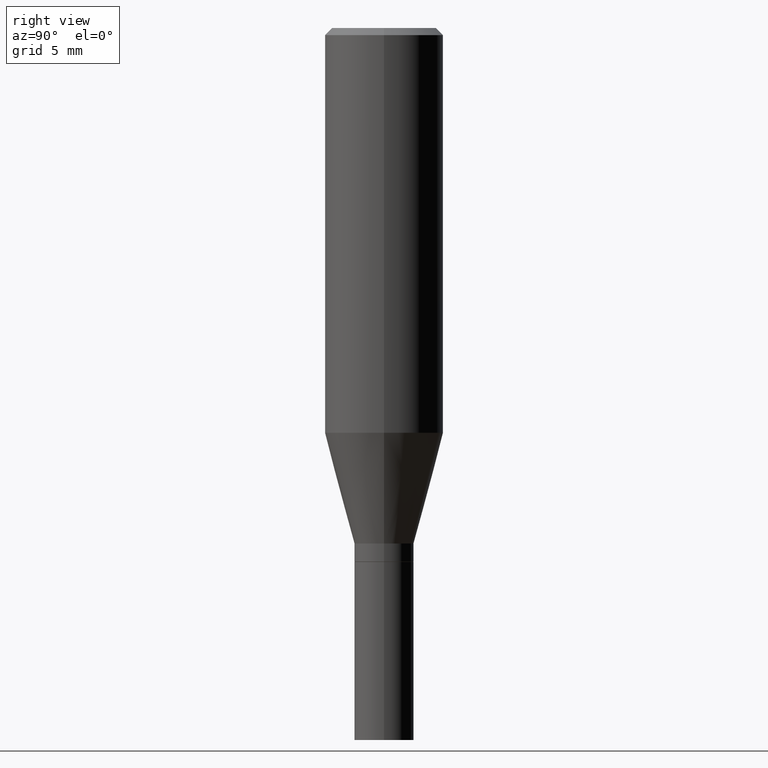
[diagram: clean part render]
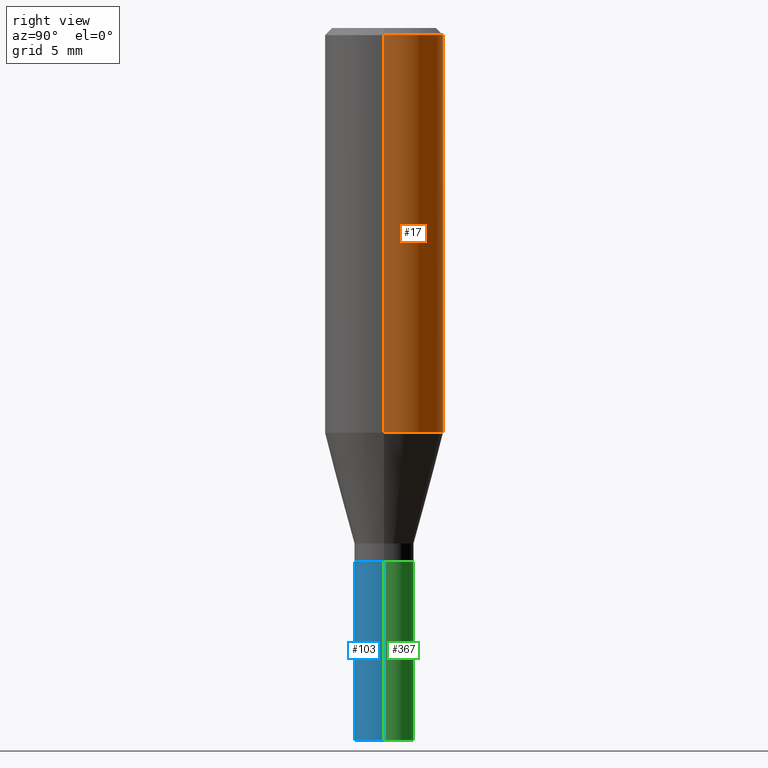
[diagram: same view with three faces highlighted in distinct colors, each labeled with its STEP entity id]
A machine part, right view with three faces highlighted in distinct colors.
Their STEP definitions:

[orange] entity #17 — the highlighted cylindrical surface (partial cylindrical patch) has radius 3.175 mm, axis along (-0, 0, 1).
#17 = ADVANCED_FACE ( 'NONE', ( #465 ), #358, .T. ) ;
#24 = DIRECTION ( 'NONE',  ( -2.445468806185136597E-29, 3.491481338843145583E-15, 1.000000000000000000 ) ) ;
#30 = CARTESIAN_POINT ( 'NONE',  ( 0.000000000000000000, 0.000000000000000000, 0.000000000000000000 ) ) ;
#33 = CARTESIAN_POINT ( 'NONE',  ( 0.1250000000000000000, -9.252425547934304180E-16, -0.01499999999999999944 ) ) ;
#45 = ORIENTED_EDGE ( 'NONE', *, *, #170, .T. ) ;
#51 = CARTESIAN_POINT ( 'NONE',  ( 0.1250000000000000000, -3.850219959304363208E-15, -0.8527468245269455016 ) ) ;
#59 = AXIS2_PLACEMENT_3D ( 'NONE', #30, #24, #243 ) ;
#84 = EDGE_CURVE ( 'NONE', #432, #91, #396, .T. ) ;
#90 = EDGE_CURVE ( 'NONE', #91, #371, #209, .T. ) ;
#91 = VERTEX_POINT ( 'NONE', #33 ) ;
#157 = AXIS2_PLACEMENT_3D ( 'NONE', #213, #274, #280 ) ;
#164 = DIRECTION ( 'NONE',  ( -2.445468806185136877E-29, 3.491481338843145188E-15, 1.000000000000000000 ) ) ;
#166 = VECTOR ( 'NONE', #164, 39.37007874015748143 ) ;
#170 = EDGE_CURVE ( 'NONE', #331, #371, #285, .T. ) ;
#181 = CARTESIAN_POINT ( 'NONE',  ( -0.1250000000000000000, -6.266825026379885376E-16, -0.01499999999999999944 ) ) ;
#184 = ORIENTED_EDGE ( 'NONE', *, *, #90, .F. ) ;
#194 = VECTOR ( 'NONE', #245, 39.37007874015748143 ) ;
#209 = CIRCLE ( 'NONE', #312, 0.1250000000000000000 ) ;
#213 = CARTESIAN_POINT ( 'NONE',  ( 2.085365758954075532E-29, -2.977349624593580658E-15, -0.8527468245269455016 ) ) ;
#221 = CARTESIAN_POINT ( 'NONE',  ( -0.1250000000000000000, 8.881784197001252323E-16, -6.148668862818632227E-30 ) ) ;
#243 = DIRECTION ( 'NONE',  ( 1.000000000000000000, -6.982962677686266711E-15, 4.876176775795935793E-29 ) ) ;
#245 = DIRECTION ( 'NONE',  ( -2.445468806185136877E-29, 3.491481338843145188E-15, 1.000000000000000000 ) ) ;
#251 = EDGE_LOOP ( 'NONE', ( #437, #45, #184, #291 ) ) ;
#274 = DIRECTION ( 'NONE',  ( -2.445468806185136597E-29, 3.491481338843145583E-15, 1.000000000000000000 ) ) ;
#280 = DIRECTION ( 'NONE',  ( 1.000000000000000000, -6.982962677686266711E-15, 0.000000000000000000 ) ) ;
#285 = LINE ( 'NONE', #221, #166 ) ;
#291 = ORIENTED_EDGE ( 'NONE', *, *, #84, .F. ) ;
#311 = CARTESIAN_POINT ( 'NONE',  ( 3.668203209277705088E-31, -5.237222008264718399E-17, -0.01499999999999999944 ) ) ;
#312 = AXIS2_PLACEMENT_3D ( 'NONE', #311, #422, #360 ) ;
#316 = CARTESIAN_POINT ( 'NONE',  ( 0.1250000000000000000, -8.728703347107833388E-16, 6.095220969744919741E-30 ) ) ;
#331 = VERTEX_POINT ( 'NONE', #427 ) ;
#347 = CIRCLE ( 'NONE', #157, 0.1250000000000000000 ) ;
#358 = CYLINDRICAL_SURFACE ( 'NONE', #59, 0.1250000000000000000 ) ;
#360 = DIRECTION ( 'NONE',  ( 1.000000000000000000, -6.982962677686266711E-15, 0.000000000000000000 ) ) ;
#371 = VERTEX_POINT ( 'NONE', #181 ) ;
#386 = EDGE_CURVE ( 'NONE', #432, #331, #347, .T. ) ;
#396 = LINE ( 'NONE', #316, #194 ) ;
#422 = DIRECTION ( 'NONE',  ( -2.445468806185136597E-29, 3.491481338843145583E-15, 1.000000000000000000 ) ) ;
#427 = CARTESIAN_POINT ( 'NONE',  ( -0.1250000000000000000, -2.089171204893455031E-15, -0.8527468245269455016 ) ) ;
#432 = VERTEX_POINT ( 'NONE', #51 ) ;
#437 = ORIENTED_EDGE ( 'NONE', *, *, #386, .T. ) ;
#465 = FACE_OUTER_BOUND ( 'NONE', #251, .T. ) ;

[blue] entity #103 — the highlighted cylindrical surface (edge-blend (fillet) strip) has radius 1.5875 mm, axis along (-0, 0, 1).
#11 = VERTEX_POINT ( 'NONE', #241 ) ;
#32 = CARTESIAN_POINT ( 'NONE',  ( 2.751152406958279232E-29, -3.927916506198539224E-15, -1.125000000000000222 ) ) ;
#35 = CYLINDRICAL_SURFACE ( 'NONE', #36, 0.06250000000000000000 ) ;
#36 = AXIS2_PLACEMENT_3D ( 'NONE', #180, #397, #236 ) ;
#49 = VERTEX_POINT ( 'NONE', #362 ) ;
#61 = EDGE_CURVE ( 'NONE', #375, #120, #323, .T. ) ;
#71 = DIRECTION ( 'NONE',  ( -2.445468806185136597E-29, 3.491481338843145583E-15, 1.000000000000000000 ) ) ;
#72 = CIRCLE ( 'NONE', #417, 0.06250000000000000000 ) ;
#99 = DIRECTION ( 'NONE',  ( -2.445468806185136597E-29, 3.491481338843145583E-15, 1.000000000000000000 ) ) ;
#100 = DIRECTION ( 'NONE',  ( 1.000000000000000000, -6.982962677686262766E-15, 0.000000000000000000 ) ) ;
#103 = ADVANCED_FACE ( 'NONE', ( #278 ), #35, .T. ) ;
#106 = CARTESIAN_POINT ( 'NONE',  ( -0.06250000000000000000, -4.138480047381566479E-15, -1.500000000000000222 ) ) ;
#118 = EDGE_CURVE ( 'NONE', #375, #11, #238, .T. ) ;
#120 = VERTEX_POINT ( 'NONE', #215 ) ;
#137 = CARTESIAN_POINT ( 'NONE',  ( 0.06250000000000000000, -4.364351673553916694E-16, 3.047610484872459871E-30 ) ) ;
#180 = CARTESIAN_POINT ( 'NONE',  ( 0.000000000000000000, 0.000000000000000000, 0.000000000000000000 ) ) ;
#215 = CARTESIAN_POINT ( 'NONE',  ( -0.06250000000000000000, -4.138480047381566479E-15, -1.125000000000000222 ) ) ;
#235 = LINE ( 'NONE', #137, #385 ) ;
#236 = DIRECTION ( 'NONE',  ( 1.000000000000000000, -6.982962677686266711E-15, 4.876176775795935793E-29 ) ) ;
#238 = CIRCLE ( 'NONE', #363, 0.06250000000000000000 ) ;
#241 = CARTESIAN_POINT ( 'NONE',  ( 0.06250000000000000000, -5.673657175620109846E-15, -1.500000000000000222 ) ) ;
#263 = EDGE_CURVE ( 'NONE', #120, #49, #72, .T. ) ;
#271 = DIRECTION ( 'NONE',  ( 1.000000000000000000, -6.982962677686262766E-15, 0.000000000000000000 ) ) ;
#278 = FACE_OUTER_BOUND ( 'NONE', #401, .T. ) ;
#284 = VECTOR ( 'NONE', #454, 39.37007874015748143 ) ;
#323 = LINE ( 'NONE', #418, #284 ) ;
#324 = EDGE_CURVE ( 'NONE', #11, #49, #235, .T. ) ;
#329 = ORIENTED_EDGE ( 'NONE', *, *, #263, .F. ) ;
#340 = ORIENTED_EDGE ( 'NONE', *, *, #324, .T. ) ;
#362 = CARTESIAN_POINT ( 'NONE',  ( 0.06250000000000000000, -4.364351673553930894E-15, -1.125000000000000222 ) ) ;
#363 = AXIS2_PLACEMENT_3D ( 'NONE', #428, #71, #100 ) ;
#375 = VERTEX_POINT ( 'NONE', #106 ) ;
#385 = VECTOR ( 'NONE', #395, 39.37007874015748143 ) ;
#395 = DIRECTION ( 'NONE',  ( -2.445468806185136877E-29, 3.491481338843145188E-15, 1.000000000000000000 ) ) ;
#397 = DIRECTION ( 'NONE',  ( -2.445468806185136597E-29, 3.491481338843145583E-15, 1.000000000000000000 ) ) ;
#399 = ORIENTED_EDGE ( 'NONE', *, *, #118, .T. ) ;
#401 = EDGE_LOOP ( 'NONE', ( #466, #399, #340, #329 ) ) ;
#417 = AXIS2_PLACEMENT_3D ( 'NONE', #32, #99, #271 ) ;
#418 = CARTESIAN_POINT ( 'NONE',  ( -0.06250000000000000000, 4.440892098500626162E-16, -3.074334431409316114E-30 ) ) ;
#428 = CARTESIAN_POINT ( 'NONE',  ( 3.668203209277704895E-29, -5.237222008264718177E-15, -1.500000000000000222 ) ) ;
#454 = DIRECTION ( 'NONE',  ( -2.445468806185136877E-29, 3.491481338843145188E-15, 1.000000000000000000 ) ) ;
#466 = ORIENTED_EDGE ( 'NONE', *, *, #61, .F. ) ;

[green] entity #367 — the highlighted cylindrical surface (edge-blend (fillet) strip) has radius 1.5875 mm, axis along (-0, 0, 1).
#11 = VERTEX_POINT ( 'NONE', #241 ) ;
#12 = CARTESIAN_POINT ( 'NONE',  ( 2.751152406958279232E-29, -3.927916506198539224E-15, -1.125000000000000222 ) ) ;
#28 = CARTESIAN_POINT ( 'NONE',  ( 0.000000000000000000, 0.000000000000000000, 0.000000000000000000 ) ) ;
#44 = AXIS2_PLACEMENT_3D ( 'NONE', #28, #279, #177 ) ;
#49 = VERTEX_POINT ( 'NONE', #362 ) ;
#61 = EDGE_CURVE ( 'NONE', #375, #120, #323, .T. ) ;
#62 = EDGE_LOOP ( 'NONE', ( #127, #436, #156, #435 ) ) ;
#94 = DIRECTION ( 'NONE',  ( 1.000000000000000000, -6.982962677686262766E-15, 0.000000000000000000 ) ) ;
#104 = AXIS2_PLACEMENT_3D ( 'NONE', #12, #376, #94 ) ;
#106 = CARTESIAN_POINT ( 'NONE',  ( -0.06250000000000000000, -4.138480047381566479E-15, -1.500000000000000222 ) ) ;
#113 = FACE_OUTER_BOUND ( 'NONE', #62, .T. ) ;
#120 = VERTEX_POINT ( 'NONE', #215 ) ;
#127 = ORIENTED_EDGE ( 'NONE', *, *, #332, .T. ) ;
#137 = CARTESIAN_POINT ( 'NONE',  ( 0.06250000000000000000, -4.364351673553916694E-16, 3.047610484872459871E-30 ) ) ;
#144 = DIRECTION ( 'NONE',  ( 1.000000000000000000, -6.982962677686262766E-15, 0.000000000000000000 ) ) ;
#156 = ORIENTED_EDGE ( 'NONE', *, *, #450, .F. ) ;
#177 = DIRECTION ( 'NONE',  ( 1.000000000000000000, -6.982962677686266711E-15, 4.876176775795935793E-29 ) ) ;
#215 = CARTESIAN_POINT ( 'NONE',  ( -0.06250000000000000000, -4.138480047381566479E-15, -1.125000000000000222 ) ) ;
#220 = AXIS2_PLACEMENT_3D ( 'NONE', #464, #390, #144 ) ;
#227 = CIRCLE ( 'NONE', #220, 0.06250000000000000000 ) ;
#235 = LINE ( 'NONE', #137, #385 ) ;
#241 = CARTESIAN_POINT ( 'NONE',  ( 0.06250000000000000000, -5.673657175620109846E-15, -1.500000000000000222 ) ) ;
#261 = CIRCLE ( 'NONE', #104, 0.06250000000000000000 ) ;
#279 = DIRECTION ( 'NONE',  ( -2.445468806185136597E-29, 3.491481338843145583E-15, 1.000000000000000000 ) ) ;
#284 = VECTOR ( 'NONE', #454, 39.37007874015748143 ) ;
#289 = CYLINDRICAL_SURFACE ( 'NONE', #44, 0.06250000000000000000 ) ;
#323 = LINE ( 'NONE', #418, #284 ) ;
#324 = EDGE_CURVE ( 'NONE', #11, #49, #235, .T. ) ;
#332 = EDGE_CURVE ( 'NONE', #11, #375, #227, .T. ) ;
#362 = CARTESIAN_POINT ( 'NONE',  ( 0.06250000000000000000, -4.364351673553930894E-15, -1.125000000000000222 ) ) ;
#367 = ADVANCED_FACE ( 'NONE', ( #113 ), #289, .T. ) ;
#375 = VERTEX_POINT ( 'NONE', #106 ) ;
#376 = DIRECTION ( 'NONE',  ( -2.445468806185136597E-29, 3.491481338843145583E-15, 1.000000000000000000 ) ) ;
#385 = VECTOR ( 'NONE', #395, 39.37007874015748143 ) ;
#390 = DIRECTION ( 'NONE',  ( -2.445468806185136597E-29, 3.491481338843145583E-15, 1.000000000000000000 ) ) ;
#395 = DIRECTION ( 'NONE',  ( -2.445468806185136877E-29, 3.491481338843145188E-15, 1.000000000000000000 ) ) ;
#418 = CARTESIAN_POINT ( 'NONE',  ( -0.06250000000000000000, 4.440892098500626162E-16, -3.074334431409316114E-30 ) ) ;
#435 = ORIENTED_EDGE ( 'NONE', *, *, #324, .F. ) ;
#436 = ORIENTED_EDGE ( 'NONE', *, *, #61, .T. ) ;
#450 = EDGE_CURVE ( 'NONE', #49, #120, #261, .T. ) ;
#454 = DIRECTION ( 'NONE',  ( -2.445468806185136877E-29, 3.491481338843145188E-15, 1.000000000000000000 ) ) ;
#464 = CARTESIAN_POINT ( 'NONE',  ( 3.668203209277704895E-29, -5.237222008264718177E-15, -1.500000000000000222 ) ) ;